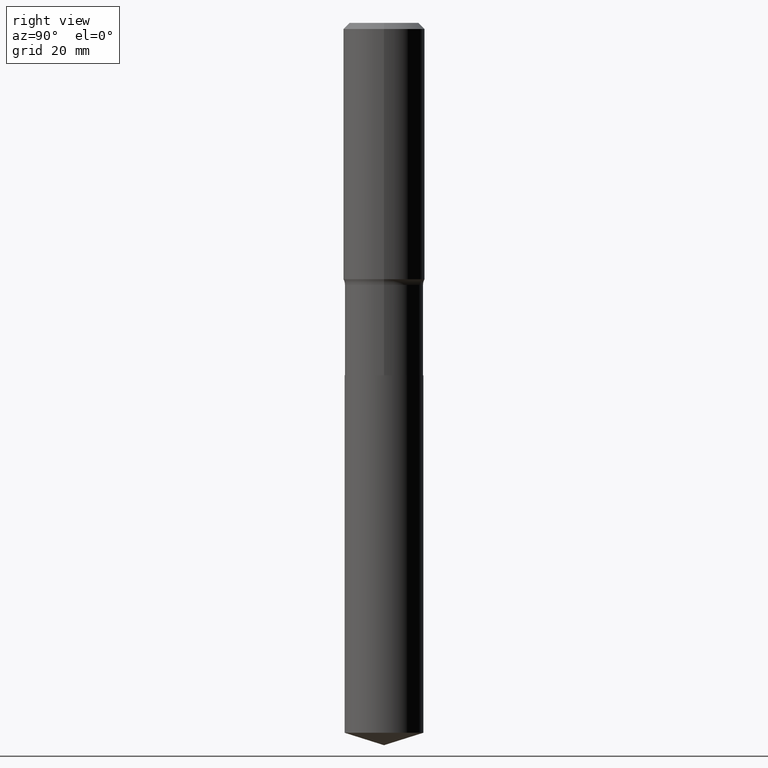
[diagram: clean part render]
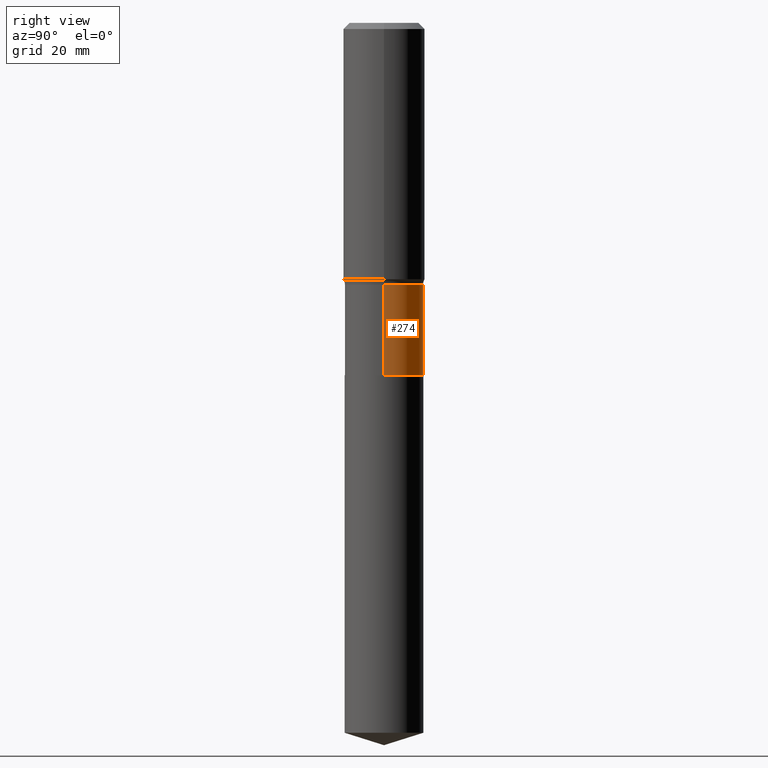
[diagram: same view with one face highlighted and labeled with its STEP entity id]
A machine part, right view. The second image highlights one B-rep face of the part: STEP entity #274.
In plain terms, the highlighted cylindrical surface (partial cylindrical patch) has radius 6.75 mm, axis along (-0, 0, 1).
Its self-contained STEP definition (entity closure, byte-faithful):
#23 = VECTOR ( 'NONE', #96, 39.37007874015748143 ) ;
#36 = EDGE_LOOP ( 'NONE', ( #455, #177, #144, #456 ) ) ;
#54 = CARTESIAN_POINT ( 'NONE',  ( 5.823639415049283689E-29, -8.314613660321065363E-15, -2.381399999999999739 ) ) ;
#56 = DIRECTION ( 'NONE',  ( -2.445468806185136597E-29, 3.491481338843145583E-15, 1.000000000000000000 ) ) ;
#62 = CARTESIAN_POINT ( 'NONE',  ( 0.2657499999999999862, -1.855722331595125347E-15, 1.295843978167769732E-29 ) ) ;
#66 = DIRECTION ( 'NONE',  ( 1.000000000000000000, -6.982962677686266711E-15, 4.876176775795935232E-29 ) ) ;
#68 = CIRCLE ( 'NONE', #405, 0.2657500000000000417 ) ;
#73 = CARTESIAN_POINT ( 'NONE',  ( 0.2657500000000000417, -1.017033599191619229E-14, -2.381399999999999739 ) ) ;
#90 = CARTESIAN_POINT ( 'NONE',  ( -0.2657499999999999862, 1.888267320282466146E-15, -1.307207000235241229E-29 ) ) ;
#93 = LINE ( 'NONE', #90, #23 ) ;
#96 = DIRECTION ( 'NONE',  ( -2.445468806185136877E-29, 3.491481338843145188E-15, 1.000000000000000000 ) ) ;
#109 = CYLINDRICAL_SURFACE ( 'NONE', #460, 0.2657499999999999862 ) ;
#141 = DIRECTION ( 'NONE',  ( 1.000000000000000000, -6.982962677686264344E-15, 0.000000000000000000 ) ) ;
#144 = ORIENTED_EDGE ( 'NONE', *, *, #332, .F. ) ;
#145 = DIRECTION ( 'NONE',  ( -2.445468806185136597E-29, 3.491481338843145583E-15, 1.000000000000000000 ) ) ;
#150 = DIRECTION ( 'NONE',  ( -2.445468806185136597E-29, 3.491481338843145583E-15, 1.000000000000000000 ) ) ;
#154 = EDGE_CURVE ( 'NONE', #291, #192, #68, .T. ) ;
#177 = ORIENTED_EDGE ( 'NONE', *, *, #488, .T. ) ;
#179 = DIRECTION ( 'NONE',  ( -2.445468806185136877E-29, 3.491481338843145188E-15, 1.000000000000000000 ) ) ;
#182 = FACE_OUTER_BOUND ( 'NONE', #36, .T. ) ;
#192 = VERTEX_POINT ( 'NONE', #436 ) ;
#198 = VERTEX_POINT ( 'NONE', #388 ) ;
#222 = CARTESIAN_POINT ( 'NONE',  ( 0.000000000000000000, 0.000000000000000000, 0.000000000000000000 ) ) ;
#238 = EDGE_CURVE ( 'NONE', #291, #198, #485, .T. ) ;
#274 = ADVANCED_FACE ( 'NONE', ( #182 ), #109, .T. ) ;
#291 = VERTEX_POINT ( 'NONE', #73 ) ;
#297 = VECTOR ( 'NONE', #179, 39.37007874015748143 ) ;
#331 = CIRCLE ( 'NONE', #447, 0.2657499999999999862 ) ;
#332 = EDGE_CURVE ( 'NONE', #198, #482, #331, .T. ) ;
#352 = DIRECTION ( 'NONE',  ( 1.000000000000000000, -6.982962677686266711E-15, 0.000000000000000000 ) ) ;
#388 = CARTESIAN_POINT ( 'NONE',  ( 0.2657499999999999862, -8.038088338284680266E-15, -1.770699999999999275 ) ) ;
#405 = AXIS2_PLACEMENT_3D ( 'NONE', #54, #56, #352 ) ;
#426 = CARTESIAN_POINT ( 'NONE',  ( -0.2657499999999999862, -5.360222513222844389E-15, -1.770699999999999275 ) ) ;
#436 = CARTESIAN_POINT ( 'NONE',  ( -0.2657500000000000417, -5.360222513222844389E-15, -2.381399999999999739 ) ) ;
#446 = CARTESIAN_POINT ( 'NONE',  ( 4.330191615112019703E-29, -6.182366006689555708E-15, -1.770699999999999275 ) ) ;
#447 = AXIS2_PLACEMENT_3D ( 'NONE', #446, #145, #141 ) ;
#455 = ORIENTED_EDGE ( 'NONE', *, *, #154, .T. ) ;
#456 = ORIENTED_EDGE ( 'NONE', *, *, #238, .F. ) ;
#460 = AXIS2_PLACEMENT_3D ( 'NONE', #222, #150, #66 ) ;
#482 = VERTEX_POINT ( 'NONE', #426 ) ;
#485 = LINE ( 'NONE', #62, #297 ) ;
#488 = EDGE_CURVE ( 'NONE', #192, #482, #93, .T. ) ;